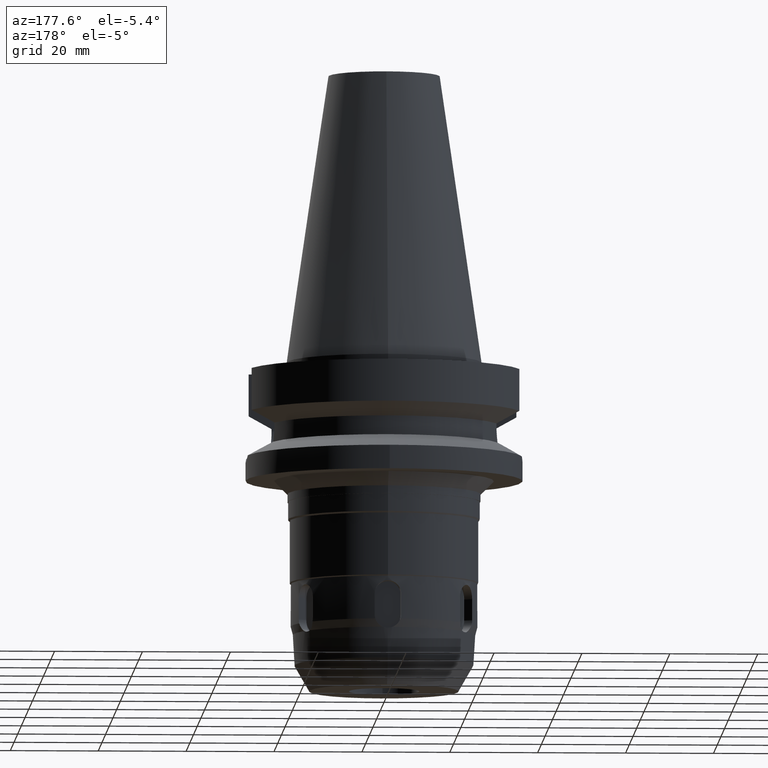
[diagram: clean part render]
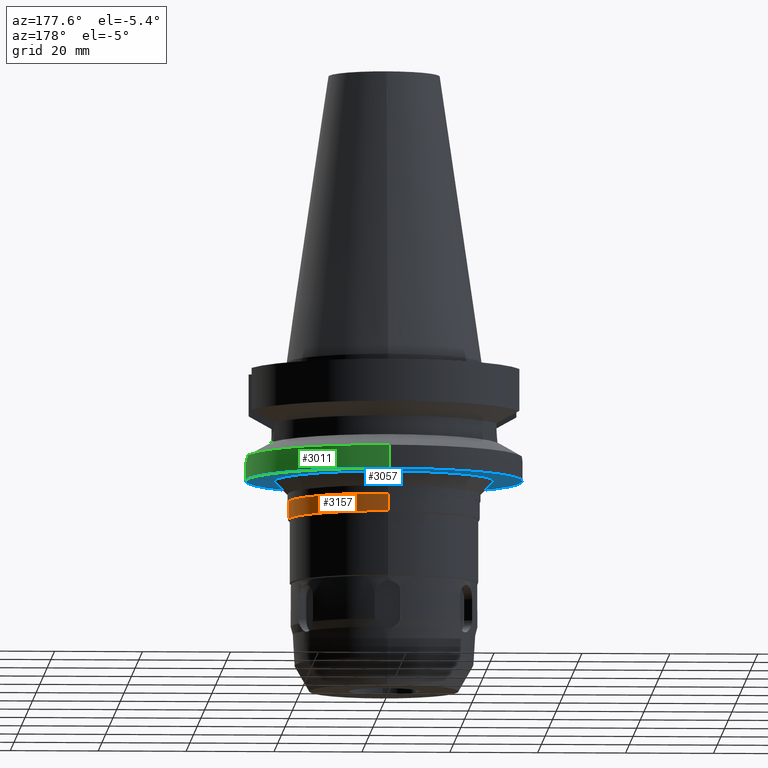
[diagram: same view with three faces highlighted in distinct colors, each labeled with its STEP entity id]
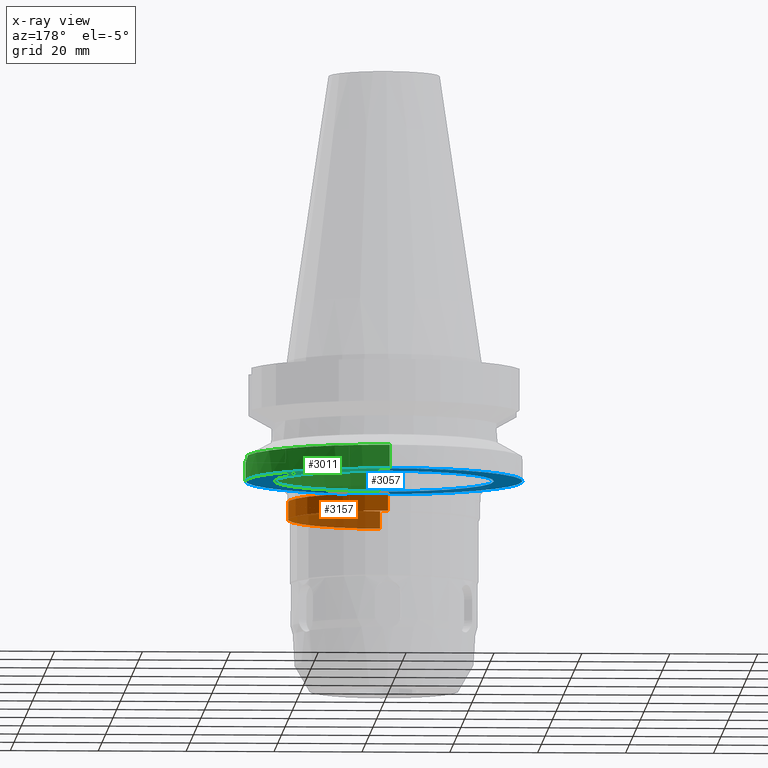
[diagram: x-ray of the same camera — body ghosted, the three highlighted faces saturated]
A machine part, auxiliary view with three faces highlighted in distinct colors.
The next image is the same camera in x-ray (body ghosted, the three faces saturated) — at least one of them is partly hidden behind the body in this view.
Their STEP definitions:

[orange] entity #3157 — the highlighted cylindrical surface (partial cylindrical patch) has radius 21.85 mm, axis along (0, 0, -1).
#728=CARTESIAN_POINT('',(0.E0,2.111536011090E-14,-3.18E1));
#729=DIRECTION('',(0.E0,0.E0,-1.E0));
#730=DIRECTION('',(0.E0,1.E0,0.E0));
#731=AXIS2_PLACEMENT_3D('',#728,#729,#730);
#736=DIRECTION('',(0.E0,0.E0,-1.E0));
#737=VECTOR('',#736,4.E0);
#738=CARTESIAN_POINT('',(0.E0,-2.185E1,-3.18E1));
#739=LINE('',#738,#737);
#743=DIRECTION('',(0.E0,0.E0,-1.E0));
#744=VECTOR('',#743,4.E0);
#745=CARTESIAN_POINT('',(0.E0,2.185E1,-3.18E1));
#746=LINE('',#745,#744);
#765=CARTESIAN_POINT('',(0.E0,0.E0,-3.58E1));
#766=DIRECTION('',(0.E0,0.E0,1.E0));
#767=DIRECTION('',(0.E0,-1.E0,0.E0));
#768=AXIS2_PLACEMENT_3D('',#765,#766,#767);
#2474=CARTESIAN_POINT('',(0.E0,2.185E1,-3.58E1));
#2475=VERTEX_POINT('',#2474);
#2476=CARTESIAN_POINT('',(0.E0,-2.185E1,-3.58E1));
#2477=VERTEX_POINT('',#2476);
#2478=CARTESIAN_POINT('',(0.E0,2.185E1,-3.18E1));
#2479=VERTEX_POINT('',#2478);
#2480=CARTESIAN_POINT('',(0.E0,-2.185E1,-3.18E1));
#2481=VERTEX_POINT('',#2480);
#3145=CARTESIAN_POINT('',(0.E0,2.111536011090E-14,7.242E1));
#3146=DIRECTION('',(0.E0,0.E0,-1.E0));
#3147=DIRECTION('',(0.E0,-1.E0,0.E0));
#3148=AXIS2_PLACEMENT_3D('',#3145,#3146,#3147);
#3149=CYLINDRICAL_SURFACE('',#3148,2.185E1);
#3150=ORIENTED_EDGE('',*,*,#3135,.T.);
#3152=ORIENTED_EDGE('',*,*,#3151,.F.);
#3153=ORIENTED_EDGE('',*,*,#3138,.F.);
#3154=ORIENTED_EDGE('',*,*,#3125,.F.);
#3155=EDGE_LOOP('',(#3150,#3152,#3153,#3154));
#3156=FACE_OUTER_BOUND('',#3155,.F.);
#732=CIRCLE('',#731,2.185E1);
#769=CIRCLE('',#768,2.185E1);
#3125=EDGE_CURVE('',#2479,#2481,#732,.T.);
#3135=EDGE_CURVE('',#2479,#2475,#746,.T.);
#3138=EDGE_CURVE('',#2481,#2477,#739,.T.);
#3151=EDGE_CURVE('',#2477,#2475,#769,.T.);
#3157=ADVANCED_FACE('',(#3156),#3149,.T.);

[blue] entity #3057 — the highlighted planar face has unit normal (0, 0, -1).
#628=CARTESIAN_POINT('',(0.E0,2.111536011090E-14,-2.7E1));
#629=DIRECTION('',(0.E0,0.E0,1.E0));
#630=DIRECTION('',(0.E0,-1.E0,0.E0));
#631=AXIS2_PLACEMENT_3D('',#628,#629,#630);
#636=CARTESIAN_POINT('',(0.E0,2.111536011090E-14,-2.7E1));
#637=DIRECTION('',(0.E0,0.E0,1.E0));
#638=DIRECTION('',(0.E0,1.E0,0.E0));
#639=AXIS2_PLACEMENT_3D('',#636,#637,#638);
#644=CARTESIAN_POINT('',(0.E0,0.E0,-2.7E1));
#645=DIRECTION('',(0.E0,0.E0,-1.E0));
#646=DIRECTION('',(0.E0,-1.E0,0.E0));
#647=AXIS2_PLACEMENT_3D('',#644,#645,#646);
#652=CARTESIAN_POINT('',(0.E0,0.E0,-2.7E1));
#653=DIRECTION('',(0.E0,0.E0,-1.E0));
#654=DIRECTION('',(0.E0,1.E0,0.E0));
#655=AXIS2_PLACEMENT_3D('',#652,#653,#654);
#2490=CARTESIAN_POINT('',(0.E0,2.5E1,-2.7E1));
#2491=VERTEX_POINT('',#2490);
#2492=CARTESIAN_POINT('',(0.E0,-2.5E1,-2.7E1));
#2493=VERTEX_POINT('',#2492);
#2494=CARTESIAN_POINT('',(0.E0,-3.15E1,-2.7E1));
#2495=CARTESIAN_POINT('',(0.E0,3.15E1,-2.7E1));
#2496=VERTEX_POINT('',#2494);
#2497=VERTEX_POINT('',#2495);
#3042=CARTESIAN_POINT('',(0.E0,0.E0,-2.7E1));
#3043=DIRECTION('',(0.E0,0.E0,-1.E0));
#3044=DIRECTION('',(0.E0,-1.E0,0.E0));
#3045=AXIS2_PLACEMENT_3D('',#3042,#3043,#3044);
#3046=PLANE('',#3045);
#3047=ORIENTED_EDGE('',*,*,#3004,.T.);
#3048=ORIENTED_EDGE('',*,*,#3035,.T.);
#3049=EDGE_LOOP('',(#3047,#3048));
#3050=FACE_OUTER_BOUND('',#3049,.F.);
#3052=ORIENTED_EDGE('',*,*,#3051,.T.);
#3054=ORIENTED_EDGE('',*,*,#3053,.T.);
#3055=EDGE_LOOP('',(#3052,#3054));
#3056=FACE_BOUND('',#3055,.F.);
#632=CIRCLE('',#631,3.15E1);
#640=CIRCLE('',#639,3.15E1);
#648=CIRCLE('',#647,2.5E1);
#656=CIRCLE('',#655,2.5E1);
#3004=EDGE_CURVE('',#2496,#2497,#632,.T.);
#3035=EDGE_CURVE('',#2497,#2496,#640,.T.);
#3051=EDGE_CURVE('',#2493,#2491,#648,.T.);
#3053=EDGE_CURVE('',#2491,#2493,#656,.T.);
#3057=ADVANCED_FACE('',(#3050,#3056),#3046,.T.);

[green] entity #3011 — the highlighted cylindrical surface (partial cylindrical patch) has radius 31.5 mm, axis along (0, 0, -1).
#497=CARTESIAN_POINT('',(0.E0,0.E0,-2.163449434733E1));
#498=DIRECTION('',(0.E0,0.E0,-1.E0));
#499=DIRECTION('',(9.898094849553E-1,-1.423979757319E-1,0.E0));
#500=AXIS2_PLACEMENT_3D('',#497,#498,#499);
#538=CARTESIAN_POINT('',(3.117899877609E1,-4.485536235554E0,-2.163449434733E1));
#539=CARTESIAN_POINT('',(3.124369080524E1,-4.035861415955E0,-2.193624233195E1));
#540=CARTESIAN_POINT('',(3.135874964355E1,-3.100296799942E0,-2.243556869762E1));
#541=CARTESIAN_POINT('',(3.147361214504E1,-1.571010238608E0,-2.289773023090E1));
#542=CARTESIAN_POINT('',(3.15E1,-5.301810614005E-1,-2.3E1));
#543=CARTESIAN_POINT('',(3.15E1,0.E0,-2.3E1));
#548=CARTESIAN_POINT('',(3.15E1,0.E0,-2.3E1));
#549=CARTESIAN_POINT('',(3.15E1,5.302874392769E-1,-2.3E1));
#550=CARTESIAN_POINT('',(3.147360169555E1,1.571257160889E0,-2.289768897754E1));
#551=CARTESIAN_POINT('',(3.135872258253E1,3.100551592234E0,-2.243545751767E1));
#552=CARTESIAN_POINT('',(3.124367674355E1,4.035959158863E0,-2.193617674295E1));
#553=CARTESIAN_POINT('',(3.117899877609E1,4.485536235554E0,-2.163449434733E1));
#558=DIRECTION('',(0.E0,1.099151708819E-13,-1.E0));
#559=VECTOR('',#558,5.365505652669E0);
#560=CARTESIAN_POINT('',(0.E0,3.15E1,-2.163449434733E1));
#561=LINE('',#560,#559);
#573=CARTESIAN_POINT('',(0.E0,0.E0,-2.163449434733E1));
#574=DIRECTION('',(0.E0,0.E0,-1.E0));
#575=DIRECTION('',(0.E0,1.E0,0.E0));
#576=AXIS2_PLACEMENT_3D('',#573,#574,#575);
#621=DIRECTION('',(0.E0,-1.105773104655E-13,-1.E0));
#622=VECTOR('',#621,5.365505652669E0);
#623=CARTESIAN_POINT('',(0.E0,-3.15E1,-2.163449434733E1));
#624=LINE('',#623,#622);
#628=CARTESIAN_POINT('',(0.E0,2.111536011090E-14,-2.7E1));
#629=DIRECTION('',(0.E0,0.E0,1.E0));
#630=DIRECTION('',(0.E0,-1.E0,0.E0));
#631=AXIS2_PLACEMENT_3D('',#628,#629,#630);
#2494=CARTESIAN_POINT('',(0.E0,-3.15E1,-2.7E1));
#2495=CARTESIAN_POINT('',(0.E0,3.15E1,-2.7E1));
#2496=VERTEX_POINT('',#2494);
#2497=VERTEX_POINT('',#2495);
#2498=VERTEX_POINT('',#548);
#2499=VERTEX_POINT('',#553);
#2500=VERTEX_POINT('',#538);
#2501=CARTESIAN_POINT('',(0.E0,3.15E1,-2.163449434733E1));
#2502=VERTEX_POINT('',#2501);
#2503=CARTESIAN_POINT('',(0.E0,-3.15E1,-2.163449434733E1));
#2504=VERTEX_POINT('',#2503);
#2993=CARTESIAN_POINT('',(0.E0,2.111536011090E-14,7.242E1));
#2994=DIRECTION('',(0.E0,0.E0,-1.E0));
#2995=DIRECTION('',(0.E0,-1.E0,0.E0));
#2996=AXIS2_PLACEMENT_3D('',#2993,#2994,#2995);
#2997=CYLINDRICAL_SURFACE('',#2996,3.15E1);
#2998=ORIENTED_EDGE('',*,*,#2979,.T.);
#2999=ORIENTED_EDGE('',*,*,#2977,.T.);
#3001=ORIENTED_EDGE('',*,*,#3000,.F.);
#3003=ORIENTED_EDGE('',*,*,#3002,.T.);
#3005=ORIENTED_EDGE('',*,*,#3004,.F.);
#3007=ORIENTED_EDGE('',*,*,#3006,.F.);
#3008=ORIENTED_EDGE('',*,*,#2965,.F.);
#3009=EDGE_LOOP('',(#2998,#2999,#3001,#3003,#3005,#3007,#3008));
#3010=FACE_OUTER_BOUND('',#3009,.F.);
#501=CIRCLE('',#500,3.15E1);
#544=B_SPLINE_CURVE_WITH_KNOTS('',3,(#538,#539,#540,#541,#542,#543),
.UNSPECIFIED.,.F.,.F.,(4,1,1,4),(0.E0,3.333333333333E-1,6.666666666667E-1,1.E0),
.UNSPECIFIED.);
#554=B_SPLINE_CURVE_WITH_KNOTS('',3,(#548,#549,#550,#551,#552,#553),
.UNSPECIFIED.,.F.,.F.,(4,1,1,4),(0.E0,3.333333333333E-1,6.666666666667E-1,1.E0),
.UNSPECIFIED.);
#577=CIRCLE('',#576,3.15E1);
#632=CIRCLE('',#631,3.15E1);
#2965=EDGE_CURVE('',#2500,#2504,#501,.T.);
#2977=EDGE_CURVE('',#2498,#2499,#554,.T.);
#2979=EDGE_CURVE('',#2500,#2498,#544,.T.);
#3000=EDGE_CURVE('',#2502,#2499,#577,.T.);
#3002=EDGE_CURVE('',#2502,#2497,#561,.T.);
#3004=EDGE_CURVE('',#2496,#2497,#632,.T.);
#3006=EDGE_CURVE('',#2504,#2496,#624,.T.);
#3011=ADVANCED_FACE('',(#3010),#2997,.T.);